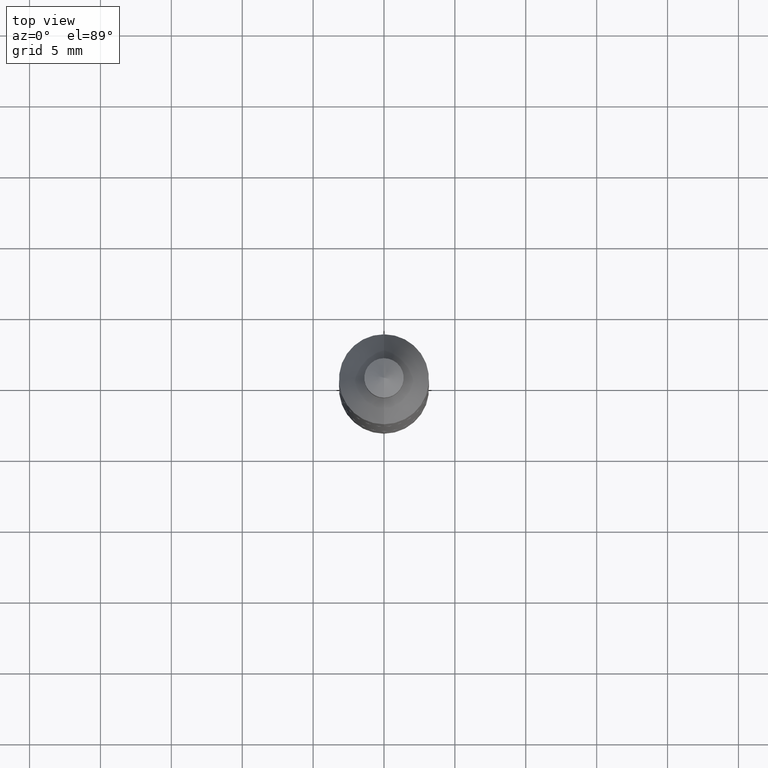
[diagram: clean part render]
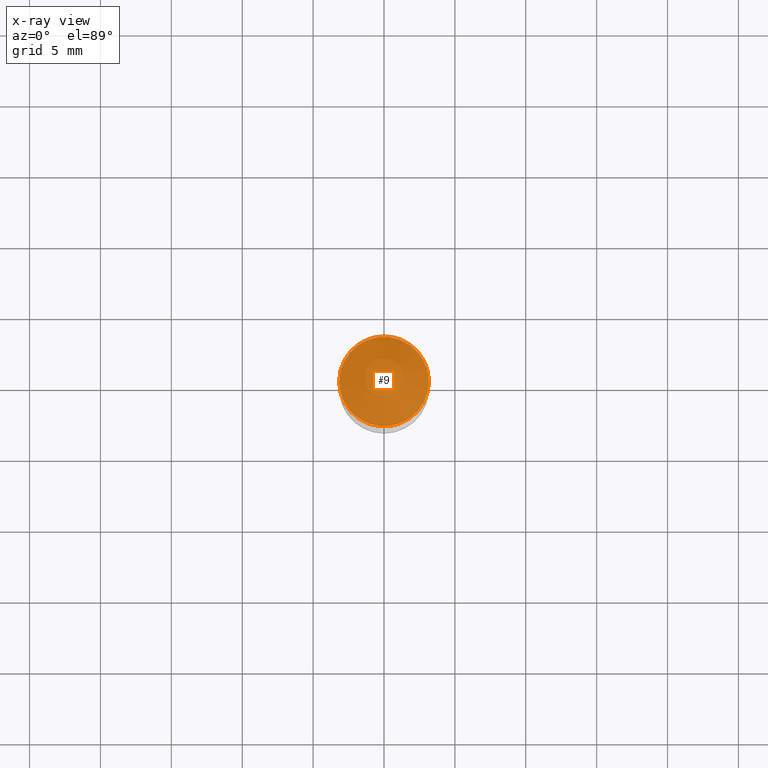
[diagram: x-ray — body ghosted, one internal face saturated and labeled with its STEP entity id]
A machine part, top view, then the same camera in x-ray: the body is ghosted and one INTERNAL B-rep face — a face not visible from any outside direction — is saturated and labeled: STEP entity #9.
In plain terms, the highlighted planar face has unit normal (-0, 0, 1).
Its self-contained STEP definition (entity closure, byte-faithful):
#9 = ADVANCED_FACE ( 'NONE', ( #316 ), #477, .T. ) ;
#35 = CIRCLE ( 'NONE', #176, 0.1245000000000000689 ) ;
#39 = EDGE_CURVE ( 'NONE', #586, #598, #35, .T. ) ;
#69 = CIRCLE ( 'NONE', #384, 0.1245000000000000689 ) ;
#100 = DIRECTION ( 'NONE',  ( -2.438088387897960049E-29, 3.491481338843145188E-15, 1.000000000000000000 ) ) ;
#154 = DIRECTION ( 'NONE',  ( 1.000000000000000000, -6.982962677686265922E-15, 0.000000000000000000 ) ) ;
#158 = DIRECTION ( 'NONE',  ( -1.000000000000000000, 6.982962677686265922E-15, -4.876176775795935793E-29 ) ) ;
#176 = AXIS2_PLACEMENT_3D ( 'NONE', #324, #642, #154 ) ;
#316 = FACE_OUTER_BOUND ( 'NONE', #447, .T. ) ;
#324 = CARTESIAN_POINT ( 'NONE',  ( -9.170508023194260837E-30, 1.309305502066179347E-15, 0.3749999999999999445 ) ) ;
#352 = DIRECTION ( 'NONE',  ( 1.000000000000000000, -6.982962677686265922E-15, 0.000000000000000000 ) ) ;
#384 = AXIS2_PLACEMENT_3D ( 'NONE', #517, #521, #352 ) ;
#422 = AXIS2_PLACEMENT_3D ( 'NONE', #584, #100, #158 ) ;
#447 = EDGE_LOOP ( 'NONE', ( #595, #534 ) ) ;
#477 = PLANE ( 'NONE',  #422 ) ;
#517 = CARTESIAN_POINT ( 'NONE',  ( -9.170508023194260837E-30, 1.309305502066179347E-15, 0.3749999999999999445 ) ) ;
#521 = DIRECTION ( 'NONE',  ( -2.445468806185136597E-29, 3.491481338843145583E-15, 1.000000000000000000 ) ) ;
#534 = ORIENTED_EDGE ( 'NONE', *, *, #39, .T. ) ;
#555 = CARTESIAN_POINT ( 'NONE',  ( 0.1245000000000000689, 4.399266486942387195E-16, 0.3749999999999999445 ) ) ;
#584 = CARTESIAN_POINT ( 'NONE',  ( -9.170508023194260837E-30, 1.309305502066179347E-15, 0.3749999999999999445 ) ) ;
#586 = VERTEX_POINT ( 'NONE', #617 ) ;
#595 = ORIENTED_EDGE ( 'NONE', *, *, #694, .T. ) ;
#598 = VERTEX_POINT ( 'NONE', #555 ) ;
#617 = CARTESIAN_POINT ( 'NONE',  ( -0.1245000000000000689, 2.164279756953467483E-15, 0.3749999999999999445 ) ) ;
#642 = DIRECTION ( 'NONE',  ( -2.445468806185136597E-29, 3.491481338843145583E-15, 1.000000000000000000 ) ) ;
#694 = EDGE_CURVE ( 'NONE', #598, #586, #69, .T. ) ;